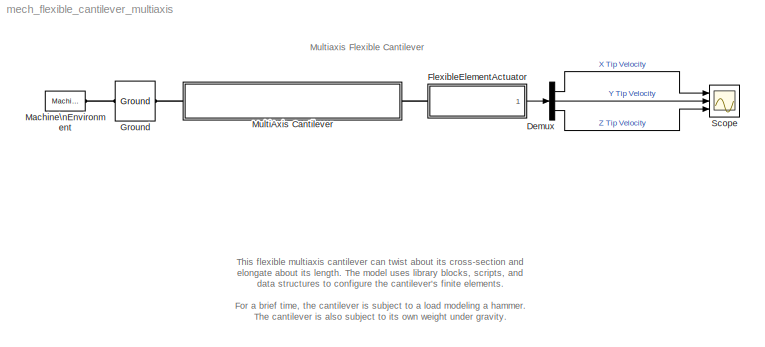
MODEL mech_flexible_cantilever_multiaxis
KIND model
CONFIG InitFcn = %-----------------------------------------\n% Defined in the block mask now. I have left it here because it can be \n% used as a starting point of describing a material data file format\n%-----------------------------------------\nfBeamElement.material = 'Mild Steel';\n\n% Beam element density (Kg/m^3)\nfBeamElement.density = 7800;\n\n% Length and Width\nfBeamElement.LengX = 1E-2;\nfBeamElement.Le...<+1011ch>
BLOCK [Demux] Demux
  DisplayOption = bar
  Outputs = 3
  Ports = [1, 3]
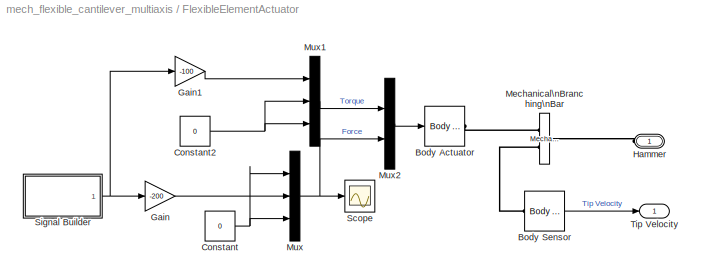
BLOCK [SubSystem] FlexibleElementActuator
  FunctionWithSeparateData = off
  MaskHideContents = off
  MinAlgLoopOccurrences = off
  Opaque = off
  Ports = [0, 1, 0, 0, 0, 1]
  PropExecContextOutsideSubsystem = off
  RTWSystemCode = Auto
  RequestExecContextInheritance = off
BLOCK [Reference] FlexibleElementActuator/Body Actuator  REF=mblibv1/Sensors & \nActuators/Body Actuator
  AccelerationUnits = m/s^2
  ActiveIO = on
  ActuationStyle = Force
  Angle = off
  AngleUnits = deg
  ArcAccelerationUnits = deg/s^2
  ArcVelocityUnits = deg/s
  ClassName = BodyActuatorForceTorque
  CoordPosition = on
  CoordPositionUnits = m
  DialogClass = MechanicalActuatorBlock
  DialogController = MECH.DynMechDlgSource
  Force = on
  ForceUnits = N
  FunctionWithSeparateData = off
  PhysicalDomain = Mechanical
  PortType = blob
  Ports = [1, 0, 0, 0, 0, 0, 1]
  RTWMemSecDataConstants = Inherit from model
  RTWMemSecDataInternal = Inherit from model
  RTWMemSecDataParameters = Inherit from model
  RTWMemSecFuncExecute = Inherit from model
  RTWMemSecFuncInitTerm = Inherit from model
  ReferenceFrame = Absolute (World)
  ShowPortLabels = FromPortIcon
  SourceBlock = mblibv1/Sensors & \nActuators/Body Actuator
  SourceType = Body Actuator
  SystemSampleTime = -1
  Torque = on
  TorqueUnits = N-m
  VelocityUnits = m/s
  Width = 6
BLOCK [Reference] FlexibleElementActuator/Body Sensor  REF=mblibv1/Sensors & \nActuators/Body Sensor
  Acceleration = off
  AccelerationUnits = m/s^2
  ActiveIO = on
  Angle = on
  AngleUnits = deg
  ArcAcceleration = off
  ArcAccelerationUnits = deg/s^2
  ArcVelocity = on
  ArcVelocityUnits = rad/s
  ClassName = BodySensor
  CoordPosition = off
  CoordPositionUnits = m
  DialogClass = MechanicalSensorBlock
  DialogController = MECH.DynMechDlgSource
  FunctionWithSeparateData = off
  Muxed = on
  OutputVector = [ 3 ]
  PhysicalDomain = Mechanical
  PortType = blob
  Ports = [0, 1, 0, 0, 0, 1]
  Pose = off
  Quaternion = on
  QuaternionDDT = off
  QuaternionDT = off
  QuaternionUnits = off
  RTWMemSecDataConstants = Inherit from model
  RTWMemSecDataInternal = Inherit from model
  RTWMemSecDataParameters = Inherit from model
  RTWMemSecFuncExecute = Inherit from model
  RTWMemSecFuncInitTerm = Inherit from model
  ReferenceFrame = Absolute (World)
  ShowPortLabels = FromPortIcon
  SourceBlock = mblibv1/Sensors & \nActuators/Body Sensor
  SourceType = Body Sensor
  SystemSampleTime = -1
  Velocity = off
  VelocityUnits = m/s
  Width = 3
BLOCK [Constant] FlexibleElementActuator/Constant
  OutDataType = sfix(16)
  OutScaling = 2^0
  Value = 0
BLOCK [Constant] FlexibleElementActuator/Constant2
  OutDataType = sfix(16)
  OutScaling = 2^0
  Value = 0
BLOCK [Gain] FlexibleElementActuator/Gain
  Gain = -200
  OutDataType = sfix(16)
  OutDataTypeMode = Inherit via internal rule
  OutDataTypeStr = Inherit: Inherit via internal rule
  OutScaling = 2^0
  ParamDataTypeStr = Inherit: Inherit via internal rule
  ParameterDataType = sfix(16)
  ParameterDataTypeMode = Inherit via internal rule
  ParameterScaling = 2^0
  SaturateOnIntegerOverflow = off
BLOCK [Gain] FlexibleElementActuator/Gain1
  Gain = -100
  OutDataType = sfix(16)
  OutDataTypeMode = Inherit via internal rule
  OutDataTypeStr = Inherit: Inherit via internal rule
  OutScaling = 2^0
  ParamDataTypeStr = Inherit: Inherit via internal rule
  ParameterDataType = sfix(16)
  ParameterDataTypeMode = Inherit via internal rule
  ParameterScaling = 2^0
  SaturateOnIntegerOverflow = off
BLOCK [PMIOPort] FlexibleElementActuator/Hammer
  Port = 1
  Side = Left
BLOCK [Reference] FlexibleElementActuator/Mechanical\nBranching\nBar  REF=mblibv1/Utilities/Mechanical\nBranching\nBar
  ClassName = BranchingBar
  DialogClass = MechanicalBranchingBarBlock
  DialogController = MECH.DynMechDlgSource
  LConnTagsString = _newl0
  LeftPortType = blob
  NumSAPorts = 2
  PhysicalDomain = mechanical
  Ports = [0, 0, 0, 0, 0, 1, 2]
  RConnTagsString = SA0|SA1
  RightPortType = blob
  SourceBlock = mblibv1/Utilities/Mechanical\nBranching\nBar
  SourceType = Mechanical Branching Bar
  SubClassName = Unknown
BLOCK [Mux] FlexibleElementActuator/Mux
  DisplayOption = bar
  Inputs = 3
  Ports = [3, 1]
BLOCK [Mux] FlexibleElementActuator/Mux1
  DisplayOption = bar
  Inputs = 3
  Ports = [3, 1]
BLOCK [Mux] FlexibleElementActuator/Mux2
  DisplayOption = bar
  Inputs = 2
  Ports = [2, 1]
BLOCK [Scope] FlexibleElementActuator/Scope
  DataFormat = StructureWithTime
  Floating = off
  NumInputPorts = 1
  Ports = [1]
  SampleTime = 0
  SaveName = ScopeData1
  TimeRange = 5
  YMax = 0
  YMin = -200
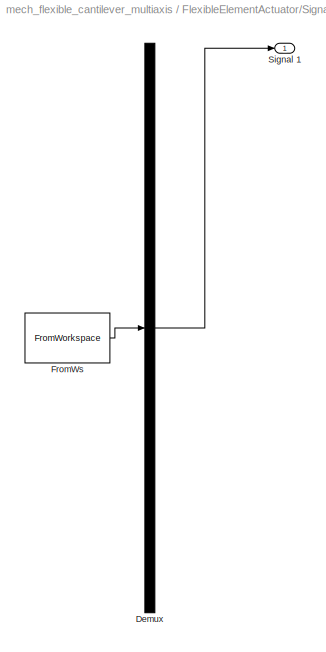
BLOCK [SubSystem] FlexibleElementActuator/Signal Builder
  ClipboardFcn = sigbuilder_block('clipboard');
  CloseFcn = sigbuilder_block('close');
  CopyFcn = sigbuilder_block('copy');
  DeleteFcn = sigbuilder_block('delete');
  FunctionWithSeparateData = off
  LoadFcn = sigbuilder_block('load');
  MaskDescription = Sigbuilder GUI
  MaskDisplay = plot(0,0,100,100,[10,10,40,40,10],[80,20,20,80,80],[40,10],[50,50], [40,27,10],[65,72,56],[40,25,25,10],[28,28,43,43]);
  MaskHideContents = off
  MaskIconFrame = on
  MaskIconOpaque = off
  MaskIconRotate = port
  MaskIconUnits = autoscale
  MaskInitialization = if ~strcmp(get_param(bdroot(gcbh),'SimulationStatus'),'stopped') tuvar = sigbuilder_block('maskInit'); end
  MaskType = Sigbuilder block
  MinAlgLoopOccurrences = off
  ModelCloseFcn = sigbuilder_block('modelClose');
  NameChangeFcn = sigbuilder_block('namechange');
  Opaque = off
  OpenFcn = sigbuilder_block('open',[31.5 93 550.5 399.75 ]);
  Ports = [0, 1]
  PreSaveFcn = sigbuilder_block('preSave');
  PropExecContextOutsideSubsystem = off
  RTWSystemCode = Auto
  RequestExecContextInheritance = off
  StartFcn = sigbuilder_block('start');
  StopFcn = sigbuilder_block('stop');
  Tag = STV Subsys
BLOCK [Demux] FlexibleElementActuator/Signal Builder/Demux
  Outputs = 1
  Ports = [1, 1]
  Tag = STV Demux
BLOCK [FromWorkspace] FlexibleElementActuator/Signal Builder/FromWs
  SampleTime = 0
  SigBuilderData = DataTag0
  Tag = STV FromWs
  VariableName = tuvar
  VnvData = DataTag1
  ZeroCross = on
BLOCK [Outport] FlexibleElementActuator/Signal Builder/Signal 1
  IconDisplay = Port number
  OutDataType = sfix(16)
  OutScaling = 2^0
  Tag = STV Outport
BLOCK [Outport] FlexibleElementActuator/Tip Velocity
  IconDisplay = Port number
  OutDataType = sfix(16)
  OutScaling = 2^0
BLOCK [Reference] Ground  REF=mblibv1/Bodies/Ground
  ClassName = Ground
  CoordPosition = [0 0 0]
  CoordPositionUnits = m
  DialogClass = GroundBlock
  DialogController = MECH.DynMechDlgSource
  FunctionWithSeparateData = off
  LeftPortType = env
  MachineId = [0 0]
  PhysicalDomain = Mechanical
  Ports = [0, 0, 0, 0, 0, 1, 1]
  RTWMemSecDataConstants = Inherit from model
  RTWMemSecDataInternal = Inherit from model
  RTWMemSecDataParameters = Inherit from model
  RTWMemSecFuncExecute = Inherit from model
  RTWMemSecFuncInitTerm = Inherit from model
  RightPortType = workingframe
  ShowEnvPort = on
  ShowPortLabels = FromPortIcon
  SourceBlock = mblibv1/Bodies/Ground
  SourceType = Ground
  StateVectorMgrId = -1
  SystemSampleTime = -1
  UserData = DataTag2
  UserDataPersistent = on
BLOCK [Reference] Machine\nEnvironment  REF=mblibv1/Bodies/Machine\nEnvironment
  AnalysisType = Forward dynamics
  AngularAssemblyTolerance = 1e-3
  AngularAssemblyToleranceUnits = rad
  ClassName = Environment
  ConstraintAbsTolerance = 1e-4
  ConstraintRelTolerance = 1e-4
  ConstraintSolverType = Stabilizing
  DialogController = MECH.DialogSource
  DialogTemplateClass = MECH.MachineEnvironment
  Dimensionality = Auto-detect
  FunctionWithSeparateData = off
  Gravity = [0 -9.81 0]
  GravityAsSignal = off
  GravityUnits = m/s^2
  LinearAssemblyTolerance = 1e-3
  LinearAssemblyToleranceUnits = m
  PerturbationSize = 1e-5
  PhysicalDomain = Mechanical
  PortType = env
  Ports = [0, 0, 0, 0, 0, 0, 1]
  RTWMemSecDataConstants = Inherit from model
  RTWMemSecDataInternal = Inherit from model
  RTWMemSecDataParameters = Inherit from model
  RTWMemSecFuncExecute = Inherit from model
  RTWMemSecFuncInitTerm = Inherit from model
  RedundancyAnalysisTolerance = 1e-14
  RedundancyAnalysisToleranceType = Automatically select tolerance
  ShowPortLabels = FromPortIcon
  SourceBlock = mblibv1/Bodies/Machine\nEnvironment
  SourceType = Machine Environment
  StatePerturbationType = Fixed
  SyncWhenCopied = off
  SystemSampleTime = -1
  Tag = Factory ground
  UseRobustSingularityHandling = off
  VisualizeMachine = on
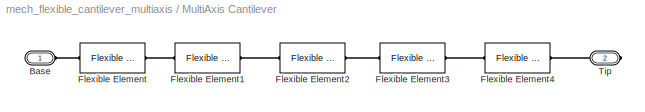
BLOCK [SubSystem] MultiAxis Cantilever
  FunctionWithSeparateData = off
  MaskHideContents = off
  MinAlgLoopOccurrences = off
  Opaque = off
  Ports = [0, 0, 0, 0, 0, 1, 1]
  PropExecContextOutsideSubsystem = off
  RTWSystemCode = Auto
  RequestExecContextInheritance = off
BLOCK [PMIOPort] MultiAxis Cantilever/Base
  Port = 1
  Side = Left
BLOCK [Reference] MultiAxis Cantilever/Flexible Element  REF=mech_flexible_element_lib/Flexible Element  (lib defined in mdl_9af6a22eb84a)
  FunctionWithSeparateData = off
  Inertia = fBeamElement.Inertia
  Ixx = fBeamElement.Ixx
  Iyy = fBeamElement.Iyy
  Ports = [0, 0, 0, 0, 0, 1, 1]
  RTWMemSecDataConstants = Inherit from model
  RTWMemSecDataInternal = Inherit from model
  RTWMemSecDataParameters = Inherit from model
  RTWMemSecFuncExecute = Inherit from model
  RTWMemSecFuncInitTerm = Inherit from model
  ShowPortLabels = FromPortIcon
  SourceBlock = mech_flexible_element_lib/Flexible Element
  SystemSampleTime = -1
  beamDir = fBeamElement.beamDir
  cgLeng = fBeamElement.cgLeng
  crossArea = fBeamElement.crossArea
  density = fBeamElement.density
  length = fBeamElement.length
  matDamping = fBeamElement.matDamping
  material = Mild Steel
  shearM = fBeamElement.shearM
  youngsM = fBeamElement.youngsM
BLOCK [Reference] MultiAxis Cantilever/Flexible Element1  REF=mech_flexible_element_lib/Flexible Element  (lib defined in mdl_9af6a22eb84a)
  FunctionWithSeparateData = off
  Inertia = fBeamElement.Inertia
  Ixx = fBeamElement.Ixx
  Iyy = fBeamElement.Iyy
  Ports = [0, 0, 0, 0, 0, 1, 1]
  RTWMemSecDataConstants = Inherit from model
  RTWMemSecDataInternal = Inherit from model
  RTWMemSecDataParameters = Inherit from model
  RTWMemSecFuncExecute = Inherit from model
  RTWMemSecFuncInitTerm = Inherit from model
  ShowPortLabels = FromPortIcon
  SourceBlock = mech_flexible_element_lib/Flexible Element
  SystemSampleTime = -1
  beamDir = fBeamElement.beamDir
  cgLeng = fBeamElement.cgLeng
  crossArea = fBeamElement.crossArea
  density = fBeamElement.density
  length = fBeamElement.length
  matDamping = fBeamElement.matDamping
  material = Mild Steel
  shearM = fBeamElement.shearM
  youngsM = fBeamElement.youngsM
BLOCK [Reference] MultiAxis Cantilever/Flexible Element2  REF=mech_flexible_element_lib/Flexible Element  (lib defined in mdl_9af6a22eb84a)
  FunctionWithSeparateData = off
  Inertia = fBeamElement.Inertia
  Ixx = fBeamElement.Ixx
  Iyy = fBeamElement.Iyy
  Ports = [0, 0, 0, 0, 0, 1, 1]
  RTWMemSecDataConstants = Inherit from model
  RTWMemSecDataInternal = Inherit from model
  RTWMemSecDataParameters = Inherit from model
  RTWMemSecFuncExecute = Inherit from model
  RTWMemSecFuncInitTerm = Inherit from model
  ShowPortLabels = FromPortIcon
  SourceBlock = mech_flexible_element_lib/Flexible Element
  SystemSampleTime = -1
  beamDir = fBeamElement.beamDir
  cgLeng = fBeamElement.cgLeng
  crossArea = fBeamElement.crossArea
  density = fBeamElement.density
  length = fBeamElement.length
  matDamping = fBeamElement.matDamping
  material = Mild Steel
  shearM = fBeamElement.shearM
  youngsM = fBeamElement.youngsM
BLOCK [Reference] MultiAxis Cantilever/Flexible Element3  REF=mech_flexible_element_lib/Flexible Element  (lib defined in mdl_9af6a22eb84a)
  FunctionWithSeparateData = off
  Inertia = fBeamElement.Inertia
  Ixx = fBeamElement.Ixx
  Iyy = fBeamElement.Iyy
  Ports = [0, 0, 0, 0, 0, 1, 1]
  RTWMemSecDataConstants = Inherit from model
  RTWMemSecDataInternal = Inherit from model
  RTWMemSecDataParameters = Inherit from model
  RTWMemSecFuncExecute = Inherit from model
  RTWMemSecFuncInitTerm = Inherit from model
  ShowPortLabels = FromPortIcon
  SourceBlock = mech_flexible_element_lib/Flexible Element
  SystemSampleTime = -1
  beamDir = fBeamElement.beamDir
  cgLeng = fBeamElement.cgLeng
  crossArea = fBeamElement.crossArea
  density = fBeamElement.density
  length = fBeamElement.length
  matDamping = fBeamElement.matDamping
  material = Mild Steel
  shearM = fBeamElement.shearM
  youngsM = fBeamElement.youngsM
BLOCK [Reference] MultiAxis Cantilever/Flexible Element4  REF=mech_flexible_element_lib/Flexible Element  (lib defined in mdl_9af6a22eb84a)
  FunctionWithSeparateData = off
  Inertia = fBeamElement.Inertia
  Ixx = fBeamElement.Ixx
  Iyy = fBeamElement.Iyy
  Ports = [0, 0, 0, 0, 0, 1, 1]
  RTWMemSecDataConstants = Inherit from model
  RTWMemSecDataInternal = Inherit from model
  RTWMemSecDataParameters = Inherit from model
  RTWMemSecFuncExecute = Inherit from model
  RTWMemSecFuncInitTerm = Inherit from model
  ShowPortLabels = FromPortIcon
  SourceBlock = mech_flexible_element_lib/Flexible Element
  SystemSampleTime = -1
  beamDir = fBeamElement.beamDir
  cgLeng = fBeamElement.cgLeng
  crossArea = fBeamElement.crossArea
  density = fBeamElement.density
  length = fBeamElement.length
  matDamping = fBeamElement.matDamping
  material = Mild Steel
  shearM = fBeamElement.shearM
  youngsM = fBeamElement.youngsM
BLOCK [PMIOPort] MultiAxis Cantilever/Tip
  Port = 2
  Side = Right
BLOCK [Scope] Scope
  DataFormat = StructureWithTime
  Floating = off
  NumInputPorts = 3
  Ports = [3]
  SampleTime = 0
  TimeRange = 5
  YMax = 15~1~6
  YMin = -5~-4~-4
ANNOTATION (root): Multiaxis Flexible Cantilever
ANNOTATION (root): This flexible multiaxis cantilever can twist about its cross-section and\nelongate about its length. The model uses library blocks, scripts, and\ndata structures to configure the cantilever's finite elements.\n\nFor a brief time, the cantilever is subject to a load modeling a hammer.\nThe cantilever is also subject to its own weight under gravity.\n\n - References -\n\nKlaus-Jurgen Bathe, Finite E...<+242ch>
LINE Demux:1 -> Scope:1
LINE Demux:2 -> Scope:2
LINE Demux:3 -> Scope:3
LINE FlexibleElementActuator/Body Sensor:1 -> FlexibleElementActuator/Tip Velocity:1
NET FlexibleElementActuator/Constant2:1 -> FlexibleElementActuator/Mux1:2, FlexibleElementActuator/Mux1:3
NET FlexibleElementActuator/Constant:1 -> FlexibleElementActuator/Mux:1, FlexibleElementActuator/Mux:3
LINE FlexibleElementActuator/Gain1:1 -> FlexibleElementActuator/Mux1:1
LINE FlexibleElementActuator/Gain:1 -> FlexibleElementActuator/Mux:2
LINE FlexibleElementActuator/Mux1:1 -> FlexibleElementActuator/Mux2:1
LINE FlexibleElementActuator/Mux2:1 -> FlexibleElementActuator/Body Actuator:1
NET FlexibleElementActuator/Mux:1 -> FlexibleElementActuator/Mux2:2, FlexibleElementActuator/Scope:1
LINE FlexibleElementActuator/Signal Builder/Demux:1 -> FlexibleElementActuator/Signal Builder/Signal 1:1
LINE FlexibleElementActuator/Signal Builder/FromWs:1 -> FlexibleElementActuator/Signal Builder/Demux:1
NET FlexibleElementActuator/Signal Builder:1 -> FlexibleElementActuator/Gain1:1, FlexibleElementActuator/Gain:1
LINE FlexibleElementActuator:1 -> Demux:1
PLINE FlexibleElementActuator/Body Actuator:RConn1 -- FlexibleElementActuator/Mechanical\nBranching\nBar:RConn1
PLINE FlexibleElementActuator/Body Sensor:LConn1 -- FlexibleElementActuator/Mechanical\nBranching\nBar:RConn2
PLINE FlexibleElementActuator/Hammer:RConn1 -- FlexibleElementActuator/Mechanical\nBranching\nBar:LConn1
PLINE FlexibleElementActuator:LConn1 -- MultiAxis Cantilever:RConn1
PLINE Ground:LConn1 -- Machine\nEnvironment:RConn1
PLINE Ground:RConn1 -- MultiAxis Cantilever:LConn1
PLINE MultiAxis Cantilever/Base:RConn1 -- MultiAxis Cantilever/Flexible Element:LConn1
PLINE MultiAxis Cantilever/Flexible Element1:LConn1 -- MultiAxis Cantilever/Flexible Element:RConn1
PLINE MultiAxis Cantilever/Flexible Element1:RConn1 -- MultiAxis Cantilever/Flexible Element2:LConn1
PLINE MultiAxis Cantilever/Flexible Element2:RConn1 -- MultiAxis Cantilever/Flexible Element3:LConn1
PLINE MultiAxis Cantilever/Flexible Element3:RConn1 -- MultiAxis Cantilever/Flexible Element4:LConn1
PLINE MultiAxis Cantilever/Flexible Element4:RConn1 -- MultiAxis Cantilever/Tip:RConn1
note: NET lines group one-source signal fan-out (src -> all destinations, sorted); 1:1 wires keep LINE
